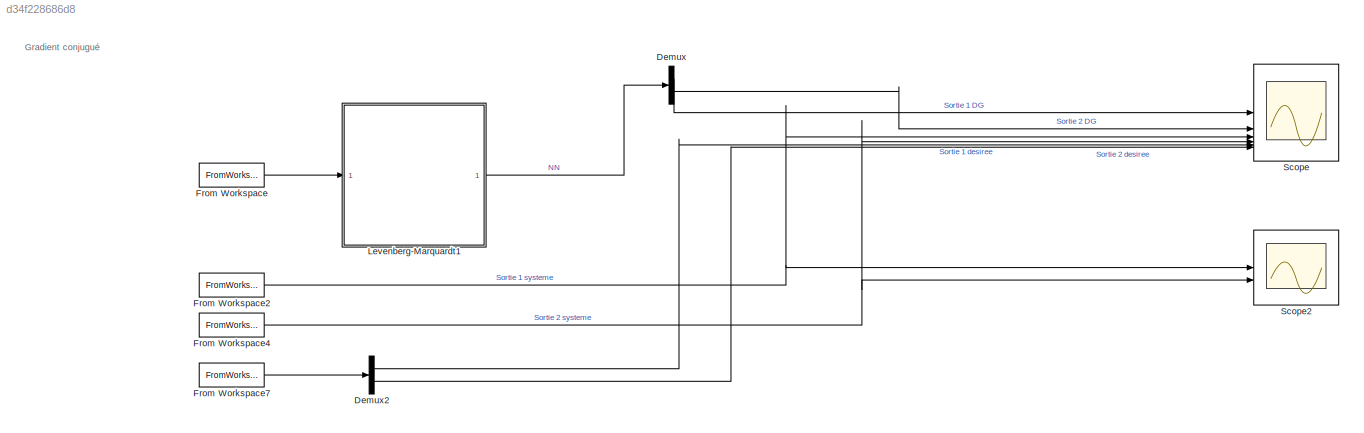
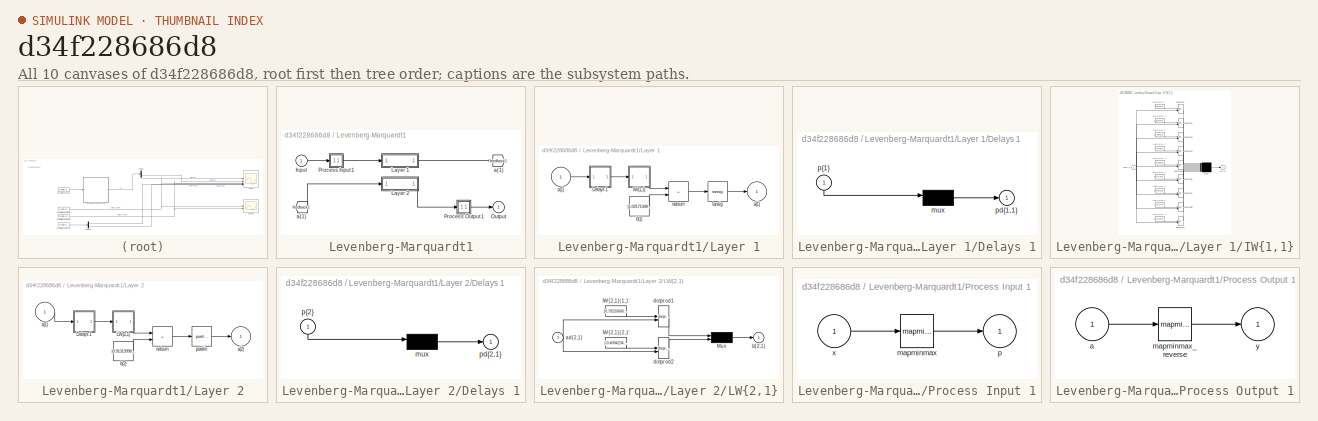
[diagram: thumbnail index - all 10 canvases of the model, root first then tree order]
MODEL slx_d34f228686d8
KIND model
CONFIG AbsTol = auto
CONFIG EnableMultiTasking = off
CONFIG FixedStep = auto
CONFIG MaxStep = auto
CONFIG MinStep = auto
CONFIG RelTol = 1e-3
CONFIG SampleTimeConstraint = Unconstrained
CONFIG SolverName = VariableStepAuto
CONFIG StartTime = 0.0
CONFIG StopTime = 1024
BLOCK [Demux] Demux
  Outputs = 2
BLOCK [Demux] Demux2
  Outputs = 2
BLOCK [FromWorkspace] From Workspace
  SampleTime = Te
  VariableName = [t entree']
BLOCK [FromWorkspace] From Workspace2
  SampleTime = Te
  VariableName = [t sortie1']
BLOCK [FromWorkspace] From Workspace4
  SampleTime = Te
  VariableName = [t sortie2']
BLOCK [FromWorkspace] From Workspace7
  SampleTime = Te
  VariableName = [t Y]
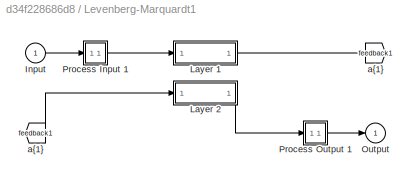
BLOCK [SubSystem] Levenberg-Marquardt1
BLOCK [From] Levenberg-Marquardt1/ a{1} 
  GotoTag = feedback1
BLOCK [Inport] Levenberg-Marquardt1/Input
  PortDimensions = 4
BLOCK [SubSystem] Levenberg-Marquardt1/Layer 1
BLOCK [SubSystem] Levenberg-Marquardt1/Layer 1/Delays 1
BLOCK [Mux] Levenberg-Marquardt1/Layer 1/Delays 1/mux
  Inputs = 1
BLOCK [Outport] Levenberg-Marquardt1/Layer 1/Delays 1/pd{1,1}
BLOCK [Inport] Levenberg-Marquardt1/Layer 1/Delays 1/p{1}
  NameLocation = left
  PortDimensions = 4
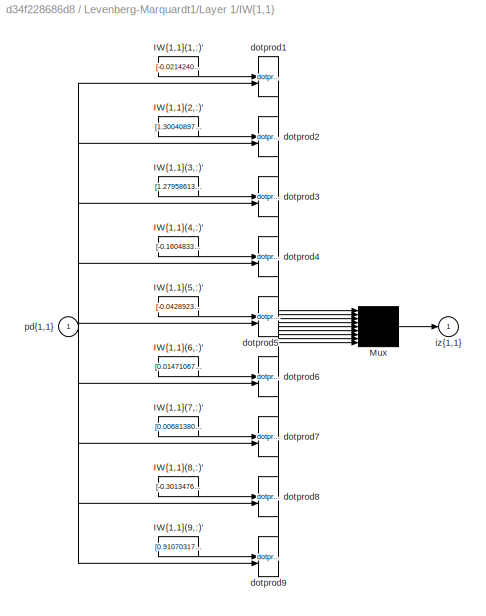
BLOCK [SubSystem] Levenberg-Marquardt1/Layer 1/IW{1,1}
BLOCK [Constant] Levenberg-Marquardt1/Layer 1/IW{1,1}/IW{1,1}(1,:)'
  Value = [-0.021424079061800750667377002400826313532888889312744140625;0.0238265890167499820584406933221544022671878337860107421875;0.42142073495714527098243706859648227691650390625;-0.11551344708333112498710448790006921626627445220947265625]
BLOCK [Constant] Levenberg-Marquardt1/Layer 1/IW{1,1}/IW{1,1}(2,:)'
  Value = [1.3004089732352317465569058185792528092861175537109375;-1.8066538602440245231406379389227367937564849853515625;-0.233249696496013292357218915640260092914104461669921875;-0.446349792989415183885881788228289224207401275634765625]
BLOCK [Constant] Levenberg-Marquardt1/Layer 1/IW{1,1}/IW{1,1}(3,:)'
  Value = [1.27958613137584364949361770413815975189208984375;-1.97152043385609676562353342887945473194122314453125;-0.38799904697980647227950612432323396205902099609375;-0.751083657629553869128358201123774051666259765625]
BLOCK [Constant] Levenberg-Marquardt1/Layer 1/IW{1,1}/IW{1,1}(4,:)'
  Value = [-0.1604833670495955100232521317593636922538280487060546875;-0.83422594668117289185005347462720237672328948974609375;-0.33309175942659685620839127295766957104206085205078125;-0.64497070382821297673814342488185502588748931884765625]
BLOCK [Constant] Levenberg-Marquardt1/Layer 1/IW{1,1}/IW{1,1}(5,:)'
  Value = [-0.042892398994367982034692232673478429205715656280517578125;-0.71167318787288980086458423102158121764659881591796875;0.29018760636441687239539533038623631000518798828125;0.56177376754494823263286207293276675045490264892578125]
BLOCK [Constant] Levenberg-Marquardt1/Layer 1/IW{1,1}/IW{1,1}(6,:)'
  Value = [0.01471067771650484169720929372715545468963682651519775390625;-0.01278448663849860410246517261612098081968724727630615234375;-0.180171355168543934066605061161681078374385833740234375;0.0647490244359717193045611338675371371209621429443359375]
BLOCK [Constant] Levenberg-Marquardt1/Layer 1/IW{1,1}/IW{1,1}(7,:)'
  Value = [0.0068138072755696034443761988086407654918730258941650390625;-0.009559759579276454199980861403673770837485790252685546875;-0.1851193347231341046477126610625418834388256072998046875;0.04359407468920550865476570834289304912090301513671875]
BLOCK [Constant] Levenberg-Marquardt1/Layer 1/IW{1,1}/IW{1,1}(8,:)'
  Value = [-0.301347683917487840776772145545692183077335357666015625;-1.34904876155661579417710527195595204830169677734375;1.509938331505760178430364248924888670444488525390625;-0.691017572324899465030512146768160164356231689453125]
BLOCK [Constant] Levenberg-Marquardt1/Layer 1/IW{1,1}/IW{1,1}(9,:)'
  Value = [0.91070317301561110046037583742872811853885650634765625;2.178887406687580519104585619061253964900970458984375;-0.25063615850103382332036972002242691814899444580078125;-0.475889407900876471035900294737075455486774444580078125]
BLOCK [Mux] Levenberg-Marquardt1/Layer 1/IW{1,1}/Mux
  Inputs = 9
BLOCK [Reference] Levenberg-Marquardt1/Layer 1/IW{1,1}/dotprod1  REF=neural/Weight Functions/dotprod
  SourceBlock = neural/Weight Functions/dotprod
  SourceType = DOTPROD
BLOCK [Reference] Levenberg-Marquardt1/Layer 1/IW{1,1}/dotprod2  REF=neural/Weight Functions/dotprod
  SourceBlock = neural/Weight Functions/dotprod
  SourceType = DOTPROD
BLOCK [Reference] Levenberg-Marquardt1/Layer 1/IW{1,1}/dotprod3  REF=neural/Weight Functions/dotprod
  SourceBlock = neural/Weight Functions/dotprod
  SourceType = DOTPROD
BLOCK [Reference] Levenberg-Marquardt1/Layer 1/IW{1,1}/dotprod4  REF=neural/Weight Functions/dotprod
  SourceBlock = neural/Weight Functions/dotprod
  SourceType = DOTPROD
BLOCK [Reference] Levenberg-Marquardt1/Layer 1/IW{1,1}/dotprod5  REF=neural/Weight Functions/dotprod
  SourceBlock = neural/Weight Functions/dotprod
  SourceType = DOTPROD
BLOCK [Reference] Levenberg-Marquardt1/Layer 1/IW{1,1}/dotprod6  REF=neural/Weight Functions/dotprod
  SourceBlock = neural/Weight Functions/dotprod
  SourceType = DOTPROD
BLOCK [Reference] Levenberg-Marquardt1/Layer 1/IW{1,1}/dotprod7  REF=neural/Weight Functions/dotprod
  SourceBlock = neural/Weight Functions/dotprod
  SourceType = DOTPROD
BLOCK [Reference] Levenberg-Marquardt1/Layer 1/IW{1,1}/dotprod8  REF=neural/Weight Functions/dotprod
  SourceBlock = neural/Weight Functions/dotprod
  SourceType = DOTPROD
BLOCK [Reference] Levenberg-Marquardt1/Layer 1/IW{1,1}/dotprod9  REF=neural/Weight Functions/dotprod
  SourceBlock = neural/Weight Functions/dotprod
  SourceType = DOTPROD
BLOCK [Outport] Levenberg-Marquardt1/Layer 1/IW{1,1}/iz{1,1}
BLOCK [Inport] Levenberg-Marquardt1/Layer 1/IW{1,1}/pd{1,1}
  PortDimensions = 4
BLOCK [Outport] Levenberg-Marquardt1/Layer 1/a{1}
  InitialOutput = [0;0;0;0;0;0;0;0;0]
BLOCK [Constant] Levenberg-Marquardt1/Layer 1/b{1}
  Value = [1.0217134893568535769503569099470041692256927490234375;-1.814904732312301316454750121920369565486907958984375;-0.5722397734420721082670979740214534103870391845703125;-0.01361849082063675171749839165613593650050461292266845703125;0.009323590572143547472450109125929884612560272216796875;0.372492297530202354227668593011912889778614044189453125;0.3238998332256668444273373097530566155910491943359375;-...<+106ch>
BLOCK [Sum] Levenberg-Marquardt1/Layer 1/netsum
  IconShape = rectangular
  InputSameDT = on
  Inputs = 2
  OutDataTypeStr = Inherit: Same as first input
  SaturateOnIntegerOverflow = on
BLOCK [Inport] Levenberg-Marquardt1/Layer 1/p{1}
  PortDimensions = 4
BLOCK [Reference] Levenberg-Marquardt1/Layer 1/tansig  REF=neural/Transfer Functions/tansig
  SourceBlock = neural/Transfer Functions/tansig
  SourceType = TANSIG
BLOCK [SubSystem] Levenberg-Marquardt1/Layer 2
BLOCK [SubSystem] Levenberg-Marquardt1/Layer 2/Delays 1
BLOCK [Mux] Levenberg-Marquardt1/Layer 2/Delays 1/mux
  Inputs = 1
BLOCK [Outport] Levenberg-Marquardt1/Layer 2/Delays 1/pd{2,1}
BLOCK [Inport] Levenberg-Marquardt1/Layer 2/Delays 1/p{2}
  NameLocation = left
  PortDimensions = 9
BLOCK [SubSystem] Levenberg-Marquardt1/Layer 2/LW{2,1}
BLOCK [Constant] Levenberg-Marquardt1/Layer 2/LW{2,1}/IW{2,1}(1,:)'
  Value = [0.792206802162271461753562107332982122898101806640625;0.1164012362616662910053122459430596791207790374755859375;-0.06814359929299740326058554273913614451885223388671875;-0.262609620577445246336623085881001316010951995849609375;0.342475447568158675171190452601877041161060333251953125;-1.310181823040406978719829567125998437404632568359375;-3.20622689727827481220856498111970722675323486328125;0.0001...<+122ch>
BLOCK [Constant] Levenberg-Marquardt1/Layer 2/LW{2,1}/IW{2,1}(2,:)'
  Value = [-0.409423472965963541891909471814869903028011322021484375;0.04598926246976826892609579999771085567772388458251953125;-0.26442820049353221723009710331098176538944244384765625;-0.96749639019418698371310938455280847847461700439453125;1.267749343176930221233078555087558925151824951171875;0.69113970383744904868450475987629033625125885009765625;1.6413437841947018380750478172558359801769256591796875;-8....<+128ch>
BLOCK [Mux] Levenberg-Marquardt1/Layer 2/LW{2,1}/Mux
  Inputs = 2
BLOCK [Inport] Levenberg-Marquardt1/Layer 2/LW{2,1}/ad{2,1}
  PortDimensions = 9
BLOCK [Reference] Levenberg-Marquardt1/Layer 2/LW{2,1}/dotprod1  REF=neural/Weight Functions/dotprod
  SourceBlock = neural/Weight Functions/dotprod
  SourceType = DOTPROD
BLOCK [Reference] Levenberg-Marquardt1/Layer 2/LW{2,1}/dotprod2  REF=neural/Weight Functions/dotprod
  SourceBlock = neural/Weight Functions/dotprod
  SourceType = DOTPROD
BLOCK [Outport] Levenberg-Marquardt1/Layer 2/LW{2,1}/lz{2,1}
BLOCK [Inport] Levenberg-Marquardt1/Layer 2/a{1} 
  PortDimensions = 9
BLOCK [Outport] Levenberg-Marquardt1/Layer 2/a{2}
  InitialOutput = [0;0]
BLOCK [Constant] Levenberg-Marquardt1/Layer 2/b{2}
  Value = [0.913139986801769776292303504305891692638397216796875;-0.461178994516247164892064347441191785037517547607421875]
BLOCK [Sum] Levenberg-Marquardt1/Layer 2/netsum
  IconShape = rectangular
  InputSameDT = on
  Inputs = 2
  OutDataTypeStr = Inherit: Same as first input
  SaturateOnIntegerOverflow = on
BLOCK [Reference] Levenberg-Marquardt1/Layer 2/purelin  REF=neural/Transfer Functions/purelin
  SourceBlock = neural/Transfer Functions/purelin
  SourceType = PURELIN
BLOCK [Outport] Levenberg-Marquardt1/Output
  InitialOutput = [0;0]
BLOCK [SubSystem] Levenberg-Marquardt1/Process Input 1
BLOCK [Reference] Levenberg-Marquardt1/Process Input 1/mapminmax  REF=neural/Processing Functions/mapminmax
  SourceBlock = neural/Processing Functions/mapminmax
  SourceType = MAPMINMAX Preprocess
BLOCK [Outport] Levenberg-Marquardt1/Process Input 1/p
  PortDimensions = 4
BLOCK [Inport] Levenberg-Marquardt1/Process Input 1/x
  PortDimensions = 4
BLOCK [SubSystem] Levenberg-Marquardt1/Process Output 1
BLOCK [Inport] Levenberg-Marquardt1/Process Output 1/a
  PortDimensions = 2
BLOCK [Reference] Levenberg-Marquardt1/Process Output 1/mapminmax_reverse  REF=neural/Processing Functions/mapminmax_reverse
  SourceBlock = neural/Processing Functions/mapminmax_reverse
  SourceType = MAPMINMAX Reverse Process
BLOCK [Outport] Levenberg-Marquardt1/Process Output 1/y
  PortDimensions = 2
BLOCK [Goto] Levenberg-Marquardt1/a{1}
  GotoTag = feedback1
BLOCK [Scope] Scope
  Floating = off
  NumInputPorts = 6
  ScopeSpecificationString = Simulink.scopes.TimeScopeBlockCfg('CurrentConfiguration', extmgr.ConfigurationSet(extmgr.Configuration('Core','General UI',true),extmgr.Configuration('Core','Source UI',true),extmgr.Configuration('Sources','WiredSimulink',true,'SampleTime','Te'),extmgr.Configuration('Visuals','Time Domain',true,'InputProcessing','FrameProcessing','SerializedDisplays',{struct('MinYLimReal','0.03202','MaxYLimReal','...<+5013ch>
BLOCK [Scope] Scope2
  Floating = off
  NumInputPorts = 2
  ScopeSpecificationString = Simulink.scopes.TimeScopeBlockCfg('CurrentConfiguration', extmgr.ConfigurationSet(extmgr.Configuration('Core','General UI',true),extmgr.Configuration('Core','Source UI',true),extmgr.Configuration('Sources','WiredSimulink',true,'DataLoggingVariableName','ScopeData1'),extmgr.Configuration('Visuals','Time Domain',true,'SerializedDisplays',{struct('MinYLimReal','0.03024','MaxYLimReal','0.88873','YLabe...<+2104ch>
ANNOTATION (root): Gradient conjugué
LINE Demux2:1 -> Scope:5
LINE Demux2:2 -> Scope:6
LINE Demux:1 -> Scope:1
LINE Demux:2 -> Scope:2
NET From Workspace2:1 -> Scope2:1, Scope:3
NET From Workspace4:1 -> Scope2:2, Scope:4
LINE From Workspace7:1 -> Demux2:1
LINE From Workspace:1 -> Levenberg-Marquardt1:1
LINE Levenberg-Marquardt1/ a{1} :1 -> Levenberg-Marquardt1/Layer 2:1
LINE Levenberg-Marquardt1/Input:1 -> Levenberg-Marquardt1/Process Input 1:1
LINE Levenberg-Marquardt1/Layer 1/Delays 1/mux:1 -> Levenberg-Marquardt1/Layer 1/Delays 1/pd{1,1}:1
LINE Levenberg-Marquardt1/Layer 1/Delays 1/p{1}:1 -> Levenberg-Marquardt1/Layer 1/Delays 1/mux:1
LINE Levenberg-Marquardt1/Layer 1/Delays 1:1 -> Levenberg-Marquardt1/Layer 1/IW{1,1}:1
LINE Levenberg-Marquardt1/Layer 1/IW{1,1}/IW{1,1}(1,:)':1 -> Levenberg-Marquardt1/Layer 1/IW{1,1}/dotprod1:1
LINE Levenberg-Marquardt1/Layer 1/IW{1,1}/IW{1,1}(2,:)':1 -> Levenberg-Marquardt1/Layer 1/IW{1,1}/dotprod2:1
LINE Levenberg-Marquardt1/Layer 1/IW{1,1}/IW{1,1}(3,:)':1 -> Levenberg-Marquardt1/Layer 1/IW{1,1}/dotprod3:1
LINE Levenberg-Marquardt1/Layer 1/IW{1,1}/IW{1,1}(4,:)':1 -> Levenberg-Marquardt1/Layer 1/IW{1,1}/dotprod4:1
LINE Levenberg-Marquardt1/Layer 1/IW{1,1}/IW{1,1}(5,:)':1 -> Levenberg-Marquardt1/Layer 1/IW{1,1}/dotprod5:1
LINE Levenberg-Marquardt1/Layer 1/IW{1,1}/IW{1,1}(6,:)':1 -> Levenberg-Marquardt1/Layer 1/IW{1,1}/dotprod6:1
LINE Levenberg-Marquardt1/Layer 1/IW{1,1}/IW{1,1}(7,:)':1 -> Levenberg-Marquardt1/Layer 1/IW{1,1}/dotprod7:1
LINE Levenberg-Marquardt1/Layer 1/IW{1,1}/IW{1,1}(8,:)':1 -> Levenberg-Marquardt1/Layer 1/IW{1,1}/dotprod8:1
LINE Levenberg-Marquardt1/Layer 1/IW{1,1}/IW{1,1}(9,:)':1 -> Levenberg-Marquardt1/Layer 1/IW{1,1}/dotprod9:1
LINE Levenberg-Marquardt1/Layer 1/IW{1,1}/Mux:1 -> Levenberg-Marquardt1/Layer 1/IW{1,1}/iz{1,1}:1
LINE Levenberg-Marquardt1/Layer 1/IW{1,1}/dotprod1:1 -> Levenberg-Marquardt1/Layer 1/IW{1,1}/Mux:1
LINE Levenberg-Marquardt1/Layer 1/IW{1,1}/dotprod2:1 -> Levenberg-Marquardt1/Layer 1/IW{1,1}/Mux:2
LINE Levenberg-Marquardt1/Layer 1/IW{1,1}/dotprod3:1 -> Levenberg-Marquardt1/Layer 1/IW{1,1}/Mux:3
LINE Levenberg-Marquardt1/Layer 1/IW{1,1}/dotprod4:1 -> Levenberg-Marquardt1/Layer 1/IW{1,1}/Mux:4
LINE Levenberg-Marquardt1/Layer 1/IW{1,1}/dotprod5:1 -> Levenberg-Marquardt1/Layer 1/IW{1,1}/Mux:5
LINE Levenberg-Marquardt1/Layer 1/IW{1,1}/dotprod6:1 -> Levenberg-Marquardt1/Layer 1/IW{1,1}/Mux:6
LINE Levenberg-Marquardt1/Layer 1/IW{1,1}/dotprod7:1 -> Levenberg-Marquardt1/Layer 1/IW{1,1}/Mux:7
LINE Levenberg-Marquardt1/Layer 1/IW{1,1}/dotprod8:1 -> Levenberg-Marquardt1/Layer 1/IW{1,1}/Mux:8
LINE Levenberg-Marquardt1/Layer 1/IW{1,1}/dotprod9:1 -> Levenberg-Marquardt1/Layer 1/IW{1,1}/Mux:9
NET Levenberg-Marquardt1/Layer 1/IW{1,1}/pd{1,1}:1 -> Levenberg-Marquardt1/Layer 1/IW{1,1}/dotprod1:2, Levenberg-Marquardt1/Layer 1/IW{1,1}/dotprod2:2, Levenberg-Marquardt1/Layer 1/IW{1,1}/dotprod3:2, Levenberg-Marquardt1/Layer 1/IW{1,1}/dotprod4:2, Levenberg-Marquardt1/Layer 1/IW{1,1}/dotprod5:2, Levenberg-Marquardt1/Layer 1/IW{1,1}/dotprod6:2, Levenberg-Marquardt1/Layer 1/IW{1,1}/dotprod7:2, Levenberg-Marquardt1/Layer 1/IW{1,1}/dotprod8:2, Levenberg-Marquardt1/Layer 1/IW{1,1}/dotprod9:2
LINE Levenberg-Marquardt1/Layer 1/IW{1,1}:1 -> Levenberg-Marquardt1/Layer 1/netsum:1
LINE Levenberg-Marquardt1/Layer 1/b{1}:1 -> Levenberg-Marquardt1/Layer 1/netsum:2
LINE Levenberg-Marquardt1/Layer 1/netsum:1 -> Levenberg-Marquardt1/Layer 1/tansig:1
LINE Levenberg-Marquardt1/Layer 1/p{1}:1 -> Levenberg-Marquardt1/Layer 1/Delays 1:1
LINE Levenberg-Marquardt1/Layer 1/tansig:1 -> Levenberg-Marquardt1/Layer 1/a{1}:1
LINE Levenberg-Marquardt1/Layer 1:1 -> Levenberg-Marquardt1/a{1}:1
LINE Levenberg-Marquardt1/Layer 2/Delays 1/mux:1 -> Levenberg-Marquardt1/Layer 2/Delays 1/pd{2,1}:1
LINE Levenberg-Marquardt1/Layer 2/Delays 1/p{2}:1 -> Levenberg-Marquardt1/Layer 2/Delays 1/mux:1
LINE Levenberg-Marquardt1/Layer 2/Delays 1:1 -> Levenberg-Marquardt1/Layer 2/LW{2,1}:1
LINE Levenberg-Marquardt1/Layer 2/LW{2,1}/IW{2,1}(1,:)':1 -> Levenberg-Marquardt1/Layer 2/LW{2,1}/dotprod1:1
LINE Levenberg-Marquardt1/Layer 2/LW{2,1}/IW{2,1}(2,:)':1 -> Levenberg-Marquardt1/Layer 2/LW{2,1}/dotprod2:1
LINE Levenberg-Marquardt1/Layer 2/LW{2,1}/Mux:1 -> Levenberg-Marquardt1/Layer 2/LW{2,1}/lz{2,1}:1
NET Levenberg-Marquardt1/Layer 2/LW{2,1}/ad{2,1}:1 -> Levenberg-Marquardt1/Layer 2/LW{2,1}/dotprod1:2, Levenberg-Marquardt1/Layer 2/LW{2,1}/dotprod2:2
LINE Levenberg-Marquardt1/Layer 2/LW{2,1}/dotprod1:1 -> Levenberg-Marquardt1/Layer 2/LW{2,1}/Mux:1
LINE Levenberg-Marquardt1/Layer 2/LW{2,1}/dotprod2:1 -> Levenberg-Marquardt1/Layer 2/LW{2,1}/Mux:2
LINE Levenberg-Marquardt1/Layer 2/LW{2,1}:1 -> Levenberg-Marquardt1/Layer 2/netsum:1
LINE Levenberg-Marquardt1/Layer 2/a{1} :1 -> Levenberg-Marquardt1/Layer 2/Delays 1:1
LINE Levenberg-Marquardt1/Layer 2/b{2}:1 -> Levenberg-Marquardt1/Layer 2/netsum:2
LINE Levenberg-Marquardt1/Layer 2/netsum:1 -> Levenberg-Marquardt1/Layer 2/purelin:1
LINE Levenberg-Marquardt1/Layer 2/purelin:1 -> Levenberg-Marquardt1/Layer 2/a{2}:1
LINE Levenberg-Marquardt1/Layer 2:1 -> Levenberg-Marquardt1/Process Output 1:1
LINE Levenberg-Marquardt1/Process Input 1/mapminmax:1 -> Levenberg-Marquardt1/Process Input 1/p:1
LINE Levenberg-Marquardt1/Process Input 1/x:1 -> Levenberg-Marquardt1/Process Input 1/mapminmax:1
LINE Levenberg-Marquardt1/Process Input 1:1 -> Levenberg-Marquardt1/Layer 1:1
LINE Levenberg-Marquardt1/Process Output 1/a:1 -> Levenberg-Marquardt1/Process Output 1/mapminmax_reverse:1
LINE Levenberg-Marquardt1/Process Output 1/mapminmax_reverse:1 -> Levenberg-Marquardt1/Process Output 1/y:1
LINE Levenberg-Marquardt1/Process Output 1:1 -> Levenberg-Marquardt1/Output:1
LINE Levenberg-Marquardt1:1 -> Demux:1
note: NET lines group one-source signal fan-out (src -> all destinations, sorted); 1:1 wires keep LINE
